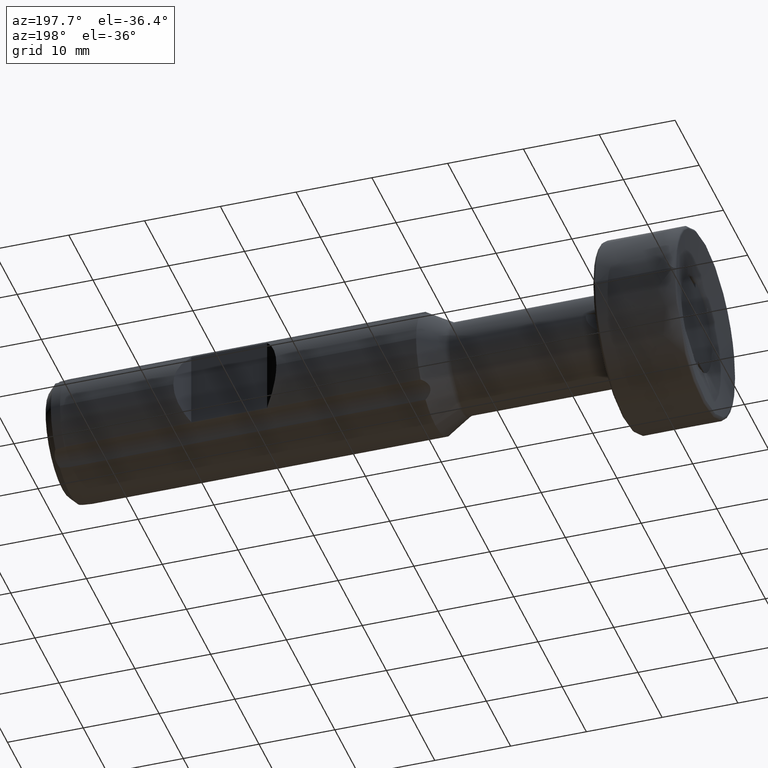
[diagram: clean part render]
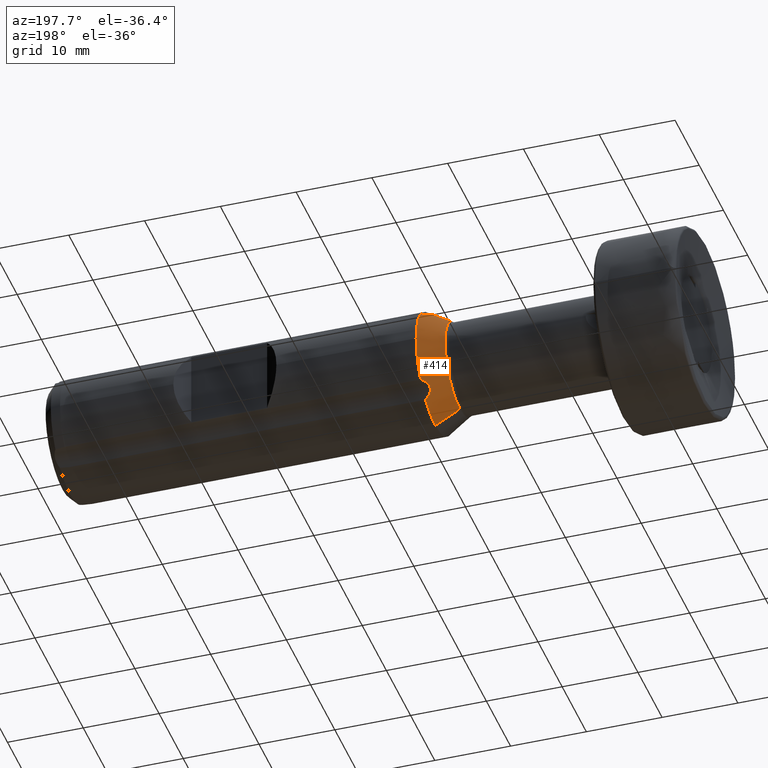
[diagram: same view with one face highlighted and labeled with its STEP entity id]
A machine part, auxiliary view. The second image highlights one B-rep face of the part: STEP entity #414.
In plain terms, the highlighted conical surface has half-angle 30 deg.
Its self-contained STEP definition (entity closure, byte-faithful):
#6 = EDGE_CURVE ( 'NONE', #867, #3403, #2399, .T. ) ;
#80 = CARTESIAN_POINT ( 'NONE',  ( -50.07197899847314900, 4.667890152276289200, -5.893829282913008800 ) ) ;
#121 = DIRECTION ( 'NONE',  ( 0.8660254037844388200, 0.0000000000000000000, -0.4999999999999996700 ) ) ;
#122 = DIRECTION ( 'NONE',  ( 0.8660254037844388200, 6.123233995736762300E-017, 0.4999999999999996700 ) ) ;
#123 = DIRECTION ( 'NONE',  ( 1.000000000000000000, -0.0000000000000000000, -0.0000000000000000000 ) ) ;
#128 = ORIENTED_EDGE ( 'NONE', *, *, #3495, .F. ) ;
#237 = CARTESIAN_POINT ( 'NONE',  ( -49.97038375044449100, 4.496719657390119800, 6.098468658784043800 ) ) ;
#249 = AXIS2_PLACEMENT_3D ( 'NONE', #2980, #1198, #3278 ) ;
#298 = EDGE_CURVE ( 'NONE', #972, #1807, #3195, .T. ) ;
#319 = ORIENTED_EDGE ( 'NONE', *, *, #376, .T. ) ;
#376 = EDGE_CURVE ( 'NONE', #972, #2002, #429, .T. ) ;
#377 = CARTESIAN_POINT ( 'NONE',  ( -49.23589838486222400, 6.142218795307285500, -5.125733925066141300 ) ) ;
#387 = CARTESIAN_POINT ( 'NONE',  ( -49.89940892531143400, 4.425204994706648500, -6.200502439594968600 ) ) ;
#414 = ADVANCED_FACE ( 'NONE', ( #3832 ), #555, .T. ) ;
#429 = B_SPLINE_CURVE_WITH_KNOTS ( 'NONE', 3,
 ( #1433, #2604, #3527, #1727, #3830, #2035, #237, #2323, #544, #2624, #844, #2920, #1145, #3216, #1447, #3539, #1746, #3843 ),
 .UNSPECIFIED., .F., .F.,
 ( 4, 2, 2, 2, 2, 2, 2, 2, 4 ),
 ( 2.627274857589083900E-007, 0.0004249437593796116000, 0.0008496247912734642800, 0.001274305823167317000, 0.001486646339114246300, 0.001698986855061175700, 0.002123667886955036000, 0.002548348918848896500, 0.003397710982636617900 ),
 .UNSPECIFIED. ) ;
#544 = CARTESIAN_POINT ( 'NONE',  ( -50.06648001206949100, 4.670433732909922100, 5.894846712131876400 ) ) ;
#555 = CONICAL_SURFACE ( 'NONE', #3288, 8.099999999999994300, 0.5235987755982984800 ) ;
#669 = CARTESIAN_POINT ( 'NONE',  ( -49.23589838486222400, 0.0000000000000000000, -8.000000000000001800 ) ) ;
#691 = CARTESIAN_POINT ( 'NONE',  ( -49.64318844945820800, 5.757600209076486800, -5.210586303969533300 ) ) ;
#696 = VECTOR ( 'NONE', #122, 1000.000000000000000 ) ;
#706 = CARTESIAN_POINT ( 'NONE',  ( -49.45158975809867700, 4.166110993202440900, -6.684742469076925700 ) ) ;
#812 = DIRECTION ( 'NONE',  ( 1.000000000000000000, -0.0000000000000000000, -0.0000000000000000000 ) ) ;
#822 = CARTESIAN_POINT ( 'NONE',  ( -49.23589838486222400, 9.797174393178827600E-016, 8.000000000000001800 ) ) ;
#844 = CARTESIAN_POINT ( 'NONE',  ( -50.10103650296472500, 4.821038095290938400, 5.746328233085684200 ) ) ;
#867 = VERTEX_POINT ( 'NONE', #1563 ) ;
#880 = CARTESIAN_POINT ( 'NONE',  ( -49.06269330410535200, 0.0000000000000000000, 0.0000000000000000000 ) ) ;
#884 = EDGE_CURVE ( 'NONE', #1217, #1255, #1319, .T. ) ;
#888 = CIRCLE ( 'NONE', #1009, 8.000000000000001800 ) ;
#907 = CARTESIAN_POINT ( 'NONE',  ( -49.23589838486222400, 8.000000000000001800, 0.0000000000000000000 ) ) ;
#972 = VERTEX_POINT ( 'NONE', #3709 ) ;
#980 = CARTESIAN_POINT ( 'NONE',  ( -49.89947655642510000, 5.439167093605127500, -5.333257405034393300 ) ) ;
#983 = EDGE_CURVE ( 'NONE', #1937, #1807, #2376, .T. ) ;
#993 = ORIENTED_EDGE ( 'NONE', *, *, #884, .T. ) ;
#1009 = AXIS2_PLACEMENT_3D ( 'NONE', #1621, #3728, #1933 ) ;
#1033 = CARTESIAN_POINT ( 'NONE',  ( -49.23589838486222400, 4.111155867226459600, -6.862827218819478300 ) ) ;
#1073 = ORIENTED_EDGE ( 'NONE', *, *, #2283, .F. ) ;
#1145 = CARTESIAN_POINT ( 'NONE',  ( -50.07197899847316300, 5.098603708529169300, 5.525455846644100600 ) ) ;
#1198 = DIRECTION ( 'NONE',  ( 1.000000000000000000, -0.0000000000000000000, -0.0000000000000000000 ) ) ;
#1217 = VERTEX_POINT ( 'NONE', #1328 ) ;
#1255 = VERTEX_POINT ( 'NONE', #1033 ) ;
#1272 = DIRECTION ( 'NONE',  ( 1.000000000000000000, -0.0000000000000000000, -0.0000000000000000000 ) ) ;
#1280 = CARTESIAN_POINT ( 'NONE',  ( -50.04651142999678400, 5.156081222069374800, -5.490897242128587800 ) ) ;
#1289 = ORIENTED_EDGE ( 'NONE', *, *, #983, .T. ) ;
#1319 = B_SPLINE_CURVE_WITH_KNOTS ( 'NONE', 3,
 ( #377, #3659, #2159, #691, #2755, #980, #3049, #1280, #3361, #1575, #3673, #1883, #80, #2179, #387, #2464, #706, #2767 ),
 .UNSPECIFIED., .F., .F.,
 ( 4, 2, 2, 2, 2, 2, 2, 2, 4 ),
 ( 2.627274900917440700E-007, 0.0004249437593839362100, 0.0008496247912777807100, 0.001274305823171625400, 0.001486646339118544300, 0.001698986855065463500, 0.002123667886959299500, 0.002548348918853135300, 0.003397710982640807700 ),
 .UNSPECIFIED. ) ;
#1328 = CARTESIAN_POINT ( 'NONE',  ( -49.23589838486222400, 6.142218795307285500, -5.125733925066141300 ) ) ;
#1415 = CIRCLE ( 'NONE', #1779, 6.133974596215551000 ) ;
#1433 = CARTESIAN_POINT ( 'NONE',  ( -49.23589838486222400, 4.111155867226457900, 6.862827218819479200 ) ) ;
#1447 = CARTESIAN_POINT ( 'NONE',  ( -49.89940892531140500, 5.439203195321322700, 5.333267136437687100 ) ) ;
#1563 = CARTESIAN_POINT ( 'NONE',  ( -52.46794919243112100, 0.0000000000000000000, -6.133974596215551000 ) ) ;
#1571 = EDGE_LOOP ( 'NONE', ( #2451, #1289, #2843, #319, #2990, #128, #993, #1073, #3792 ) ) ;
#1574 = CARTESIAN_POINT ( 'NONE',  ( -49.23589838486222400, 6.142218795307289100, 5.125733925066137800 ) ) ;
#1575 = CARTESIAN_POINT ( 'NONE',  ( -50.09382464636100000, 4.985925312866247500, -5.609412573489370500 ) ) ;
#1613 = VECTOR ( 'NONE', #121, 1000.000000000000000 ) ;
#1621 = CARTESIAN_POINT ( 'NONE',  ( -49.23589838486222400, 0.0000000000000000000, 0.0000000000000000000 ) ) ;
#1727 = CARTESIAN_POINT ( 'NONE',  ( -49.64318844945822900, 4.254630012892855400, 6.496021340179201100 ) ) ;
#1742 = CIRCLE ( 'NONE', #249, 8.000000000000001800 ) ;
#1746 = CARTESIAN_POINT ( 'NONE',  ( -49.45158975809864900, 5.957765967805535500, 5.152405977640075500 ) ) ;
#1779 = AXIS2_PLACEMENT_3D ( 'NONE', #1930, #123, #2223 ) ;
#1807 = VERTEX_POINT ( 'NONE', #822 ) ;
#1855 = CARTESIAN_POINT ( 'NONE',  ( -52.46794919243112100, 8.654563374242689900E-016, 6.133974596215551000 ) ) ;
#1883 = CARTESIAN_POINT ( 'NONE',  ( -50.10110020268081900, 4.767711260130285600, -5.791900414966413300 ) ) ;
#1918 = AXIS2_PLACEMENT_3D ( 'NONE', #2582, #812, #2886 ) ;
#1927 = CARTESIAN_POINT ( 'NONE',  ( -49.06269330410535200, 0.0000000000000000000, -8.099999999999994300 ) ) ;
#1930 = CARTESIAN_POINT ( 'NONE',  ( -52.46794919243112100, 0.0000000000000000000, 0.0000000000000000000 ) ) ;
#1933 = DIRECTION ( 'NONE',  ( 0.0000000000000000000, 0.0000000000000000000, -1.000000000000000000 ) ) ;
#1937 = VERTEX_POINT ( 'NONE', #1855 ) ;
#2002 = VERTEX_POINT ( 'NONE', #1574 ) ;
#2035 = CARTESIAN_POINT ( 'NONE',  ( -49.89947655642510700, 4.425200979857851100, 6.200465265476125900 ) ) ;
#2096 = EDGE_CURVE ( 'NONE', #2424, #2002, #2780, .T. ) ;
#2159 = CARTESIAN_POINT ( 'NONE',  ( -49.44734956718046000, 5.955209364455257100, -5.157939717418097200 ) ) ;
#2179 = CARTESIAN_POINT ( 'NONE',  ( -49.97090633376311100, 4.497405599458652100, -6.097581723722790100 ) ) ;
#2223 = DIRECTION ( 'NONE',  ( 0.0000000000000000000, 0.0000000000000000000, -1.000000000000000000 ) ) ;
#2283 = EDGE_CURVE ( 'NONE', #3403, #1255, #1742, .T. ) ;
#2323 = CARTESIAN_POINT ( 'NONE',  ( -50.04651142999679800, 4.624835794100687500, 5.945251884470219600 ) ) ;
#2376 = LINE ( 'NONE', #3723, #696 ) ;
#2399 = LINE ( 'NONE', #1927, #1613 ) ;
#2424 = VERTEX_POINT ( 'NONE', #907 ) ;
#2451 = ORIENTED_EDGE ( 'NONE', *, *, #2795, .T. ) ;
#2464 = CARTESIAN_POINT ( 'NONE',  ( -49.65574835003045000, 4.244733860082060800, -6.496711470004709300 ) ) ;
#2582 = CARTESIAN_POINT ( 'NONE',  ( -49.23589838486222400, 0.0000000000000000000, 0.0000000000000000000 ) ) ;
#2604 = CARTESIAN_POINT ( 'NONE',  ( -49.34365792631898300, 4.138611481639829400, 6.773855969368238300 ) ) ;
#2624 = CARTESIAN_POINT ( 'NONE',  ( -50.09382464636100700, 4.768305776004349500, 5.795534545805459500 ) ) ;
#2755 = CARTESIAN_POINT ( 'NONE',  ( -49.73621060703261100, 5.653889744214117400, -5.244668625824476600 ) ) ;
#2767 = CARTESIAN_POINT ( 'NONE',  ( -49.23589838486222400, 4.111155867226459600, -6.862827218819478300 ) ) ;
#2780 = CIRCLE ( 'NONE', #1918, 8.000000000000001800 ) ;
#2795 = EDGE_CURVE ( 'NONE', #867, #1937, #1415, .T. ) ;
#2843 = ORIENTED_EDGE ( 'NONE', *, *, #298, .F. ) ;
#2886 = DIRECTION ( 'NONE',  ( 0.0000000000000000000, 0.0000000000000000000, -1.000000000000000000 ) ) ;
#2920 = CARTESIAN_POINT ( 'NONE',  ( -50.10110020268080400, 4.982427350805557400, 5.608261653204667900 ) ) ;
#2957 = DIRECTION ( 'NONE',  ( 1.000000000000000000, -0.0000000000000000000, -0.0000000000000000000 ) ) ;
#2980 = CARTESIAN_POINT ( 'NONE',  ( -49.23589838486222400, 0.0000000000000000000, 0.0000000000000000000 ) ) ;
#2990 = ORIENTED_EDGE ( 'NONE', *, *, #2096, .F. ) ;
#3042 = CARTESIAN_POINT ( 'NONE',  ( -49.23589838486222400, 0.0000000000000000000, 0.0000000000000000000 ) ) ;
#3049 = CARTESIAN_POINT ( 'NONE',  ( -49.97038375044448300, 5.327313084708953800, -5.388092701208729600 ) ) ;
#3195 = CIRCLE ( 'NONE', #3854, 8.000000000000001800 ) ;
#3216 = CARTESIAN_POINT ( 'NONE',  ( -49.97090633376310400, 5.326330501511948900, 5.388632794335106400 ) ) ;
#3251 = DIRECTION ( 'NONE',  ( 0.0000000000000000000, 0.0000000000000000000, -1.000000000000000000 ) ) ;
#3278 = DIRECTION ( 'NONE',  ( 0.0000000000000000000, 0.0000000000000000000, -1.000000000000000000 ) ) ;
#3288 = AXIS2_PLACEMENT_3D ( 'NONE', #880, #2957, #3251 ) ;
#3356 = DIRECTION ( 'NONE',  ( 0.0000000000000000000, 0.0000000000000000000, -1.000000000000000000 ) ) ;
#3361 = CARTESIAN_POINT ( 'NONE',  ( -50.06648001206948400, 5.099214358176167700, -5.528126440522591200 ) ) ;
#3403 = VERTEX_POINT ( 'NONE', #669 ) ;
#3495 = EDGE_CURVE ( 'NONE', #1217, #2424, #888, .T. ) ;
#3527 = CARTESIAN_POINT ( 'NONE',  ( -49.44734956718046000, 4.171974270954979000, 6.683074994753846800 ) ) ;
#3539 = CARTESIAN_POINT ( 'NONE',  ( -49.65574835003043600, 5.759816728993049800, 5.200916911067689200 ) ) ;
#3659 = CARTESIAN_POINT ( 'NONE',  ( -49.34365792631898300, 6.050066050328454500, -5.139059298779288000 ) ) ;
#3673 = CARTESIAN_POINT ( 'NONE',  ( -50.10103650296474600, 4.929136372071843300, -5.653875759523075800 ) ) ;
#3709 = CARTESIAN_POINT ( 'NONE',  ( -49.23589838486222400, 4.111155867226457900, 6.862827218819479200 ) ) ;
#3723 = CARTESIAN_POINT ( 'NONE',  ( -49.06269330410535200, 9.919639073093553300E-016, 8.099999999999994300 ) ) ;
#3728 = DIRECTION ( 'NONE',  ( 1.000000000000000000, -0.0000000000000000000, -0.0000000000000000000 ) ) ;
#3792 = ORIENTED_EDGE ( 'NONE', *, *, #6, .F. ) ;
#3830 = CARTESIAN_POINT ( 'NONE',  ( -49.73621060703262500, 4.304383864600521500, 6.398851286020302200 ) ) ;
#3832 = FACE_OUTER_BOUND ( 'NONE', #1571, .T. ) ;
#3843 = CARTESIAN_POINT ( 'NONE',  ( -49.23589838486222400, 6.142218795307289100, 5.125733925066137800 ) ) ;
#3854 = AXIS2_PLACEMENT_3D ( 'NONE', #3042, #1272, #3356 ) ;